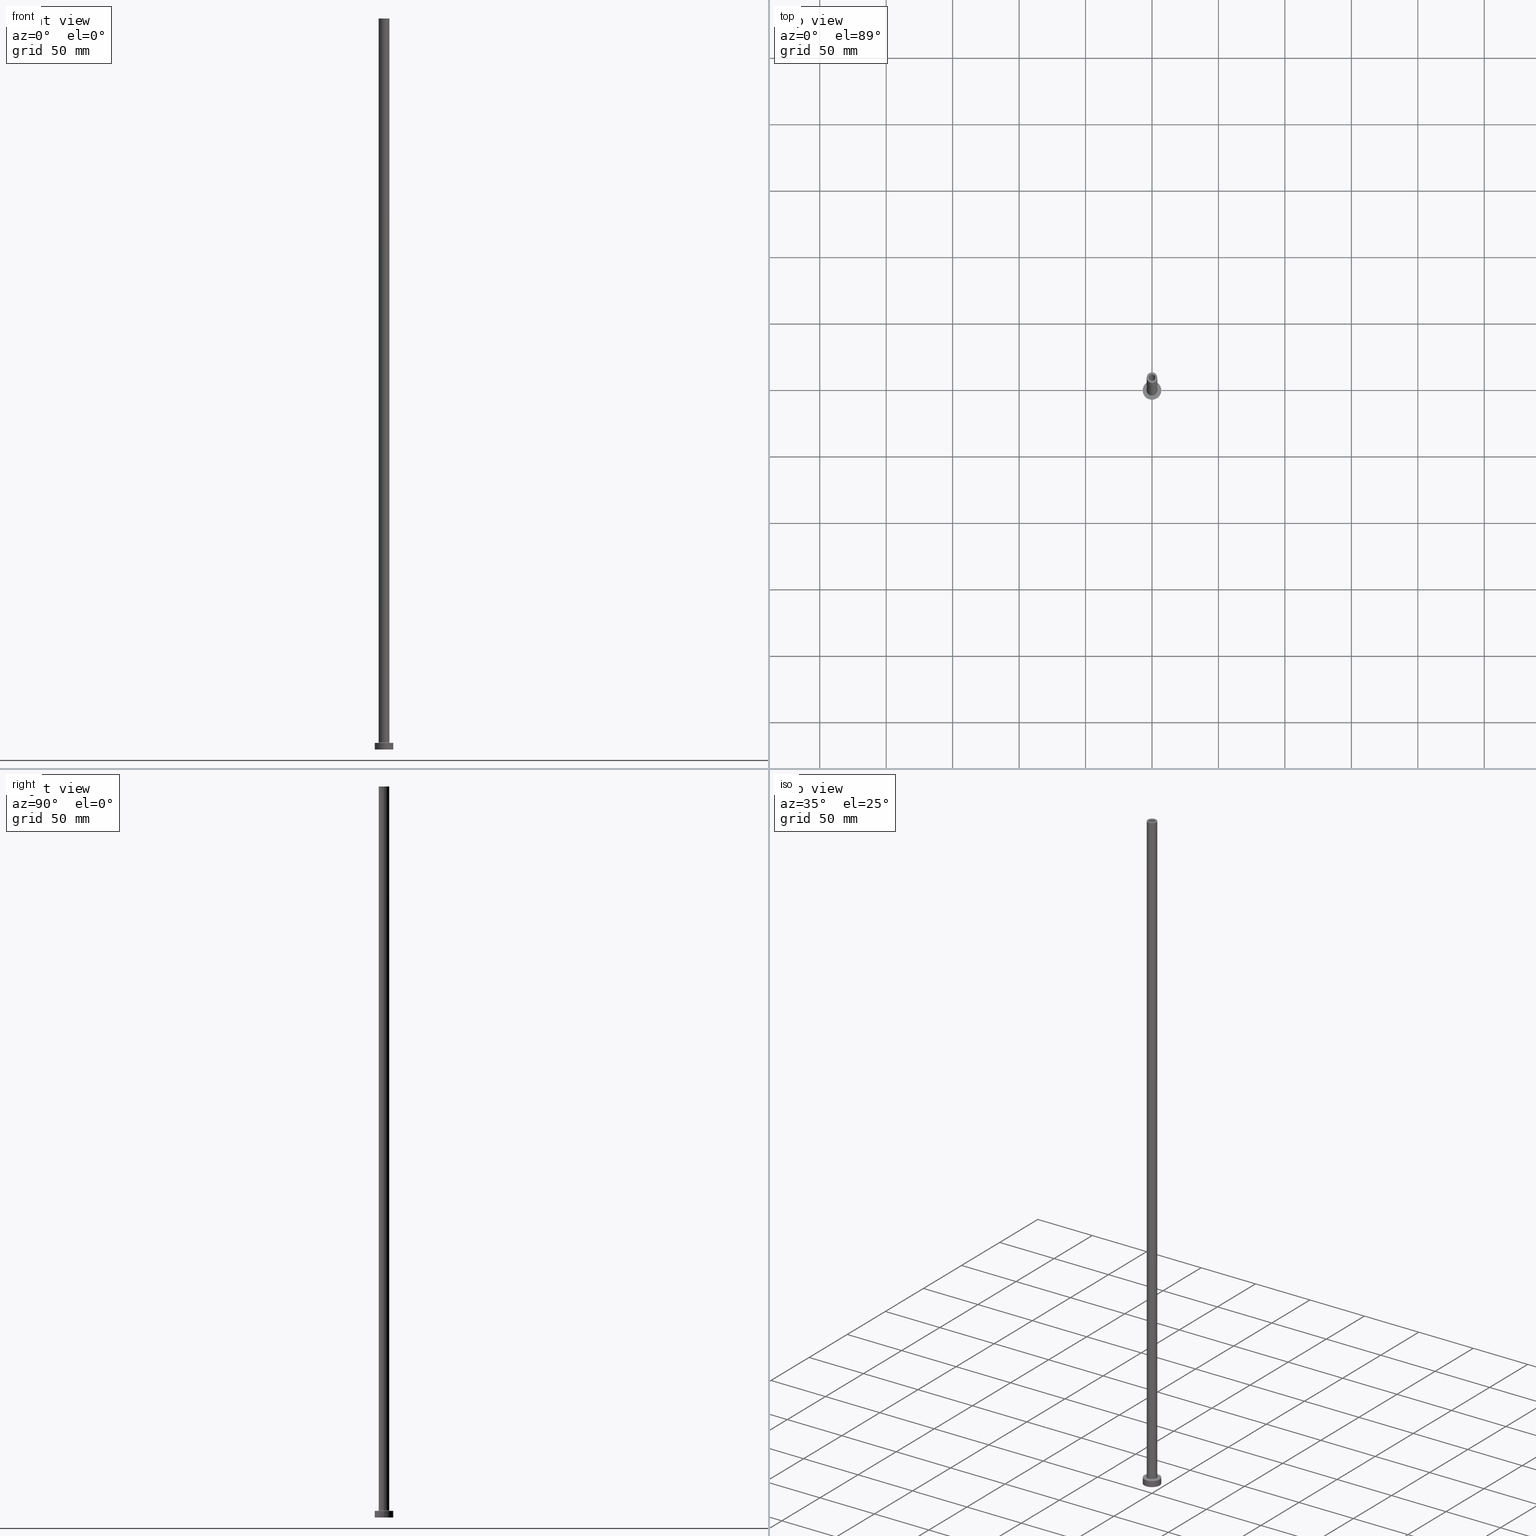
[diagram: canonical four-view strip — front | top / right | iso, engineering-drawing reading convention]
A machine part, canonical four-view strip (front | top / right | iso — engineering-drawing reading convention). The complete STEP part file that produces these views, byte-faithful:
ISO-10303-21;
HEADER;
FILE_DESCRIPTION (( 'STEP AP203' ),
    '1' );
FILE_NAME ('595f.STEP',
    '2023-02-13T17:08:48',
    ( '' ),
    ( '' ),
    'SwSTEP 2.0',
    'SolidWorks 2019',
    '' );
FILE_SCHEMA (( 'CONFIG_CONTROL_DESIGN' ));
ENDSEC;

DATA;
#1 = CARTESIAN_POINT ( 'NONE',  ( 2.500000000000000000, 3.061616997868383141E-16, 505.0000000000000000 ) ) ;
#2 = ORIENTED_EDGE ( 'NONE', *, *, #385, .F. ) ;
#3 = ADVANCED_FACE ( 'NONE', ( #139, #280 ), #12, .F. ) ;
#4 = APPROVAL_STATUS ( 'not_yet_approved' ) ;
#5 = DIRECTION ( 'NONE',  ( 0.000000000000000000, -1.000000000000000000, 0.000000000000000000 ) ) ;
#6 = COORDINATED_UNIVERSAL_TIME_OFFSET ( 1, 0, .AHEAD. ) ;
#7 = CARTESIAN_POINT ( 'NONE',  ( 0.000000000000000000, 0.000000000000000000, 505.0000000000000000 ) ) ;
#8 = MECHANICAL_CONTEXT ( 'NONE', #111, 'mechanical' ) ;
#9 = CARTESIAN_POINT ( 'NONE',  ( 0.000000000000000000, 0.000000000000000000, 0.000000000000000000 ) ) ;
#10 = CIRCLE ( 'NONE', #323, 2.500000000000000000 ) ;
#11 = COORDINATED_UNIVERSAL_TIME_OFFSET ( 1, 0, .AHEAD. ) ;
#12 = PLANE ( 'NONE',  #198 ) ;
#13 = PRODUCT ( '595f', '595f', '', ( #8 ) ) ;
#14 = DIRECTION ( 'NONE',  ( 0.000000000000000000, 0.000000000000000000, 1.000000000000000000 ) ) ;
#15 = ADVANCED_FACE ( 'NONE', ( #257 ), #190, .T. ) ;
#16 = ORGANIZATION ( 'NEUR�EN�', 'NEUR�EN�', '' ) ;
#17 = PERSON ( 'NEUR�EN�', 'NEUR�EN�', 'NEUR�EN�', ('NEUR�EN�'), ('NEUR�EN�'), ('NEUR�EN�') ) ;
#18 = CYLINDRICAL_SURFACE ( 'NONE', #371, 2.649999999999999911 ) ;
#19 = CARTESIAN_POINT ( 'NONE',  ( 0.000000000000000000, 0.000000000000000000, 5.000000000000000000 ) ) ;
#20 = VERTEX_POINT ( 'NONE', #366 ) ;
#21 = DIRECTION ( 'NONE',  ( 0.000000000000000000, 0.000000000000000000, -1.000000000000000000 ) ) ;
#22 = AXIS2_PLACEMENT_3D ( 'NONE', #281, #246, #57 ) ;
#23 = FACE_OUTER_BOUND ( 'NONE', #355, .T. ) ;
#24 = ORIENTED_EDGE ( 'NONE', *, *, #385, .T. ) ;
#25 = CARTESIAN_POINT ( 'NONE',  ( 2.649999999999999911, 3.245314017740485962E-16, 0.000000000000000000 ) ) ;
#26 = ORIENTED_EDGE ( 'NONE', *, *, #450, .T. ) ;
#27 = EDGE_CURVE ( 'NONE', #423, #244, #315, .T. ) ;
#28 = CARTESIAN_POINT ( 'NONE',  ( -2.500000000000000000, 0.000000000000000000, 505.0000000000000000 ) ) ;
#29 = ORIENTED_EDGE ( 'NONE', *, *, #253, .F. ) ;
#30 = DIRECTION ( 'NONE',  ( 0.000000000000000000, 0.000000000000000000, -1.000000000000000000 ) ) ;
#31 = CIRCLE ( 'NONE', #151, 2.649999999999999911 ) ;
#32 = ORIENTED_EDGE ( 'NONE', *, *, #87, .T. ) ;
#33 = CARTESIAN_POINT ( 'NONE',  ( 0.000000000000000000, 0.000000000000000000, 550.0000000000000000 ) ) ;
#34 = ORIENTED_EDGE ( 'NONE', *, *, #205, .F. ) ;
#35 = ORIENTED_EDGE ( 'NONE', *, *, #283, .T. ) ;
#36 = VERTEX_POINT ( 'NONE', #337 ) ;
#37 = ADVANCED_BREP_SHAPE_REPRESENTATION ( '595f', ( #100, #103 ), #43 ) ;
#38 = FACE_OUTER_BOUND ( 'NONE', #270, .T. ) ;
#39 = APPLICATION_PROTOCOL_DEFINITION ( 'international standard', 'config_control_design', 1994, #41 ) ;
#40 = CYLINDRICAL_SURFACE ( 'NONE', #339, 2.500000000000000000 ) ;
#41 = APPLICATION_CONTEXT ( 'configuration controlled 3d designs of mechanical parts and assemblies' ) ;
#42 = PERSON_AND_ORGANIZATION_ROLE ( 'classification_officer' ) ;
#43 =( GEOMETRIC_REPRESENTATION_CONTEXT ( 3 ) GLOBAL_UNCERTAINTY_ASSIGNED_CONTEXT ( ( #127 ) ) GLOBAL_UNIT_ASSIGNED_CONTEXT ( ( #321, #58, #141 ) ) REPRESENTATION_CONTEXT ( 'NONE', 'WORKASPACE' ) );
#44 = LINE ( 'NONE', #189, #181 ) ;
#45 = EDGE_CURVE ( 'NONE', #20, #425, #306, .T. ) ;
#46 = DATE_AND_TIME ( #217, #194 ) ;
#47 = CARTESIAN_POINT ( 'NONE',  ( 0.000000000000000000, 0.000000000000000000, 5.000000000000000000 ) ) ;
#48 = LINE ( 'NONE', #254, #294 ) ;
#49 = DIRECTION ( 'NONE',  ( 1.224646799147353207E-16, 1.000000000000000000, -0.000000000000000000 ) ) ;
#50 = VECTOR ( 'NONE', #372, 1000.000000000000000 ) ;
#51 = LINE ( 'NONE', #166, #50 ) ;
#52 = ORIENTED_EDGE ( 'NONE', *, *, #264, .F. ) ;
#53 = FACE_OUTER_BOUND ( 'NONE', #171, .T. ) ;
#54 = CARTESIAN_POINT ( 'NONE',  ( -2.500000000000000000, 0.000000000000000000, 550.0000000000000000 ) ) ;
#55 = ORIENTED_EDGE ( 'NONE', *, *, #368, .T. ) ;
#56 = AXIS2_PLACEMENT_3D ( 'NONE', #167, #138, #456 ) ;
#57 = DIRECTION ( 'NONE',  ( 1.000000000000000000, 0.000000000000000000, 0.000000000000000000 ) ) ;
#58 =( NAMED_UNIT ( * ) PLANE_ANGLE_UNIT ( ) SI_UNIT ( $, .RADIAN. ) );
#59 = EDGE_LOOP ( 'NONE', ( #241, #68 ) ) ;
#60 = CLOSED_SHELL ( 'NONE', ( #172, #345, #304, #214, #15, #305, #90, #3, #318, #418, #142, #291, #309, #147 ) ) ;
#61 = CARTESIAN_POINT ( 'NONE',  ( 0.000000000000000000, 0.000000000000000000, 5.000000000000000000 ) ) ;
#62 = VERTEX_POINT ( 'NONE', #297 ) ;
#63 = CC_DESIGN_APPROVAL ( #99, ( #434 ) ) ;
#64 = AXIS2_PLACEMENT_3D ( 'NONE', #61, #274, #210 ) ;
#65 = DIRECTION ( 'NONE',  ( 0.000000000000000000, 0.000000000000000000, 1.000000000000000000 ) ) ;
#66 = APPROVAL_PERSON_ORGANIZATION ( #334, #99, #336 ) ;
#67 = ORIENTED_EDGE ( 'NONE', *, *, #220, .T. ) ;
#68 = ORIENTED_EDGE ( 'NONE', *, *, #404, .F. ) ;
#69 = APPROVAL_DATE_TIME ( #292, #99 ) ;
#70 = ORIENTED_EDGE ( 'NONE', *, *, #290, .F. ) ;
#71 = CALENDAR_DATE ( 2023, 13, 2 ) ;
#72 = AXIS2_PLACEMENT_3D ( 'NONE', #303, #444, #229 ) ;
#73 = APPROVAL_PERSON_ORGANIZATION ( #324, #120, #250 ) ;
#74 = CARTESIAN_POINT ( 'NONE',  ( 0.000000000000000000, 0.000000000000000000, 5.499999999999949374 ) ) ;
#75 = DIRECTION ( 'NONE',  ( 1.000000000000000000, 0.000000000000000000, -0.000000000000000000 ) ) ;
#76 = CC_DESIGN_PERSON_AND_ORGANIZATION_ASSIGNMENT ( #396, #186, ( #209 ) ) ;
#77 = PERSON_AND_ORGANIZATION_ROLE ( 'creator' ) ;
#78 = DIRECTION ( 'NONE',  ( 1.000000000000000000, 0.000000000000000000, 0.000000000000000000 ) ) ;
#79 = PERSON_AND_ORGANIZATION_ROLE ( 'creator' ) ;
#80 = DIRECTION ( 'NONE',  ( 1.000000000000000000, 0.000000000000000000, 0.000000000000000000 ) ) ;
#81 = CIRCLE ( 'NONE', #447, 4.000000000000000000 ) ;
#82 = LINE ( 'NONE', #332, #433 ) ;
#83 = CARTESIAN_POINT ( 'NONE',  ( 7.000000000000000000, 8.572527594031473190E-16, 0.000000000000000000 ) ) ;
#84 = ORIENTED_EDGE ( 'NONE', *, *, #184, .F. ) ;
#85 = AXIS2_PLACEMENT_3D ( 'NONE', #88, #307, #313 ) ;
#86 = DIRECTION ( 'NONE',  ( 1.000000000000000000, 0.000000000000000000, 0.000000000000000000 ) ) ;
#87 = EDGE_CURVE ( 'NONE', #427, #62, #330, .T. ) ;
#88 = CARTESIAN_POINT ( 'NONE',  ( 0.000000000000000000, 0.000000000000000000, 5.000000000000000000 ) ) ;
#89 = VERTEX_POINT ( 'NONE', #155 ) ;
#90 = ADVANCED_FACE ( 'NONE', ( #117, #38 ), #185, .T. ) ;
#91 = CYLINDRICAL_SURFACE ( 'NONE', #245, 4.000000000000000000 ) ;
#92 = ORIENTED_EDGE ( 'NONE', *, *, #87, .F. ) ;
#93 = AXIS2_PLACEMENT_3D ( 'NONE', #408, #344, #86 ) ;
#94 = EDGE_CURVE ( 'NONE', #244, #423, #453, .T. ) ;
#95 = ORIENTED_EDGE ( 'NONE', *, *, #258, .T. ) ;
#96 = DESIGN_CONTEXT ( 'detailed design', #41, 'design' ) ;
#97 = DIRECTION ( 'NONE',  ( -0.000000000000000000, -0.000000000000000000, -1.000000000000000000 ) ) ;
#98 = ORIENTED_EDGE ( 'NONE', *, *, #204, .T. ) ;
#99 = APPROVAL ( #365, 'NEUR�EN�' ) ;
#100 = MANIFOLD_SOLID_BREP ( 'Odebrat vysunut�m4', #60 ) ;
#101 = PLANE ( 'NONE',  #333 ) ;
#102 = EDGE_LOOP ( 'NONE', ( #342, #26, #207, #420 ) ) ;
#103 = AXIS2_PLACEMENT_3D ( 'NONE', #331, #255, #182 ) ;
#104 = DIRECTION ( 'NONE',  ( -1.000000000000000000, 0.000000000000000000, 0.000000000000000000 ) ) ;
#105 = ORIENTED_EDGE ( 'NONE', *, *, #45, .T. ) ;
#106 = EDGE_CURVE ( 'NONE', #410, #417, #169, .T. ) ;
#107 = CC_DESIGN_PERSON_AND_ORGANIZATION_ASSIGNMENT ( #363, #79, ( #242 ) ) ;
#108 = ORIENTED_EDGE ( 'NONE', *, *, #253, .T. ) ;
#109 = AXIS2_PLACEMENT_3D ( 'NONE', #9, #14, #401 ) ;
#110 = DIRECTION ( 'NONE',  ( 1.000000000000000000, 0.000000000000000000, -0.000000000000000000 ) ) ;
#111 = APPLICATION_CONTEXT ( 'configuration controlled 3d designs of mechanical parts and assemblies' ) ;
#112 = AXIS2_PLACEMENT_3D ( 'NONE', #341, #228, #158 ) ;
#113 = CARTESIAN_POINT ( 'NONE',  ( -2.500000000000000000, 0.000000000000000000, 550.0000000000000000 ) ) ;
#114 = APPROVAL_DATE_TIME ( #156, #120 ) ;
#115 = DIRECTION ( 'NONE',  ( -1.000000000000000000, 0.000000000000000000, 0.000000000000000000 ) ) ;
#116 = SECURITY_CLASSIFICATION_LEVEL ( 'unclassified' ) ;
#117 = FACE_BOUND ( 'NONE', #350, .T. ) ;
#118 = COORDINATED_UNIVERSAL_TIME_OFFSET ( 1, 0, .AHEAD. ) ;
#119 = DIRECTION ( 'NONE',  ( 0.000000000000000000, 0.000000000000000000, -1.000000000000000000 ) ) ;
#120 = APPROVAL ( #4, 'NEUR�EN�' ) ;
#121 = DIRECTION ( 'NONE',  ( 0.000000000000000000, 0.000000000000000000, -1.000000000000000000 ) ) ;
#122 = ORIENTED_EDGE ( 'NONE', *, *, #460, .F. ) ;
#123 = CARTESIAN_POINT ( 'NONE',  ( 0.000000000000000000, 0.000000000000000000, 505.0000000000000000 ) ) ;
#124 = DIRECTION ( 'NONE',  ( 0.000000000000000000, 0.000000000000000000, 1.000000000000000000 ) ) ;
#125 = EDGE_LOOP ( 'NONE', ( #232, #122 ) ) ;
#126 = VECTOR ( 'NONE', #30, 1000.000000000000000 ) ;
#127 = UNCERTAINTY_MEASURE_WITH_UNIT (LENGTH_MEASURE( 1.000000000000000082E-05 ), #321, 'distance_accuracy_value', 'NONE');
#128 = CARTESIAN_POINT ( 'NONE',  ( -4.500000000000000888, 5.510910596163089556E-16, 5.499999999999949374 ) ) ;
#129 = ORIENTED_EDGE ( 'NONE', *, *, #283, .F. ) ;
#130 = CYLINDRICAL_SURFACE ( 'NONE', #300, 7.000000000000000000 ) ;
#131 = VERTEX_POINT ( 'NONE', #326 ) ;
#132 = AXIS2_PLACEMENT_3D ( 'NONE', #221, #367, #80 ) ;
#133 = FACE_OUTER_BOUND ( 'NONE', #380, .T. ) ;
#134 = ORIENTED_EDGE ( 'NONE', *, *, #94, .T. ) ;
#135 = CC_DESIGN_SECURITY_CLASSIFICATION ( #434, ( #209 ) ) ;
#136 = DIRECTION ( 'NONE',  ( 0.000000000000000000, 0.000000000000000000, 1.000000000000000000 ) ) ;
#137 = EDGE_LOOP ( 'NONE', ( #392, #55 ) ) ;
#138 = DIRECTION ( 'NONE',  ( 0.000000000000000000, 0.000000000000000000, -1.000000000000000000 ) ) ;
#139 = FACE_BOUND ( 'NONE', #125, .T. ) ;
#140 = AXIS2_PLACEMENT_3D ( 'NONE', #47, #296, #187 ) ;
#141 =( NAMED_UNIT ( * ) SI_UNIT ( $, .STERADIAN. ) SOLID_ANGLE_UNIT ( ) );
#142 = ADVANCED_FACE ( 'NONE', ( #225 ), #430, .F. ) ;
#143 = ORIENTED_EDGE ( 'NONE', *, *, #264, .T. ) ;
#144 = CIRCLE ( 'NONE', #85, 4.500000000000000888 ) ;
#145 = APPLICATION_PROTOCOL_DEFINITION ( 'international standard', 'config_control_design', 1994, #111 ) ;
#146 = ORIENTED_EDGE ( 'NONE', *, *, #178, .F. ) ;
#147 = ADVANCED_FACE ( 'NONE', ( #223 ), #441, .F. ) ;
#148 = COORDINATED_UNIVERSAL_TIME_OFFSET ( 1, 0, .AHEAD. ) ;
#149 = DIRECTION ( 'NONE',  ( -0.000000000000000000, -0.000000000000000000, -1.000000000000000000 ) ) ;
#150 = AXIS2_PLACEMENT_3D ( 'NONE', #256, #5, #119 ) ;
#151 = AXIS2_PLACEMENT_3D ( 'NONE', #316, #176, #277 ) ;
#152 = VECTOR ( 'NONE', #121, 1000.000000000000000 ) ;
#153 = DIRECTION ( 'NONE',  ( 0.000000000000000000, 0.000000000000000000, -1.000000000000000000 ) ) ;
#154 = CALENDAR_DATE ( 2023, 13, 2 ) ;
#155 = CARTESIAN_POINT ( 'NONE',  ( -4.500000000000000888, 5.510910596163088569E-16, 4.999999999999975131 ) ) ;
#156 = DATE_AND_TIME ( #357, #267 ) ;
#157 = DIRECTION ( 'NONE',  ( 0.000000000000000000, 0.000000000000000000, 1.000000000000000000 ) ) ;
#158 = DIRECTION ( 'NONE',  ( 1.000000000000000000, 0.000000000000000000, 0.000000000000000000 ) ) ;
#159 = CIRCLE ( 'NONE', #64, 7.000000000000000000 ) ;
#160 = AXIS2_PLACEMENT_3D ( 'NONE', #201, #179, #348 ) ;
#161 = DIRECTION ( 'NONE',  ( -1.000000000000000000, 0.000000000000000000, 0.000000000000000000 ) ) ;
#162 = CARTESIAN_POINT ( 'NONE',  ( 2.500000000000000000, 3.061616997868383141E-16, 550.0000000000000000 ) ) ;
#163 = DIRECTION ( 'NONE',  ( 1.000000000000000000, 0.000000000000000000, 0.000000000000000000 ) ) ;
#164 = CIRCLE ( 'NONE', #160, 4.000000000000000000 ) ;
#165 = LOCAL_TIME ( 18, 8, 48.00000000000000000, #11 ) ;
#166 = CARTESIAN_POINT ( 'NONE',  ( -4.000000000000000000, 0.000000000000000000, 550.0000000000000000 ) ) ;
#167 = CARTESIAN_POINT ( 'NONE',  ( 0.000000000000000000, 0.000000000000000000, 512.4953318805775098 ) ) ;
#168 = ORIENTED_EDGE ( 'NONE', *, *, #273, .F. ) ;
#169 = CIRCLE ( 'NONE', #383, 2.500000000000000000 ) ;
#170 = CARTESIAN_POINT ( 'NONE',  ( 0.000000000000000000, 0.000000000000000000, 550.0000000000000000 ) ) ;
#171 = EDGE_LOOP ( 'NONE', ( #322, #412, #455, #308 ) ) ;
#172 = ADVANCED_FACE ( 'NONE', ( #436 ), #40, .F. ) ;
#173 = CYLINDRICAL_SURFACE ( 'NONE', #56, 2.649999999999999911 ) ;
#174 = CC_DESIGN_PERSON_AND_ORGANIZATION_ASSIGNMENT ( #440, #42, ( #434 ) ) ;
#175 = ORIENTED_EDGE ( 'NONE', *, *, #368, .F. ) ;
#176 = DIRECTION ( 'NONE',  ( -0.000000000000000000, -0.000000000000000000, -1.000000000000000000 ) ) ;
#177 = ORIENTED_EDGE ( 'NONE', *, *, #404, .T. ) ;
#178 = EDGE_CURVE ( 'NONE', #131, #423, #82, .T. ) ;
#179 = DIRECTION ( 'NONE',  ( 0.000000000000000000, 0.000000000000000000, 1.000000000000000000 ) ) ;
#180 = VERTEX_POINT ( 'NONE', #113 ) ;
#181 = VECTOR ( 'NONE', #335, 1000.000000000000000 ) ;
#182 = DIRECTION ( 'NONE',  ( 1.000000000000000000, 0.000000000000000000, 0.000000000000000000 ) ) ;
#183 = ORIENTED_EDGE ( 'NONE', *, *, #376, .T. ) ;
#184 = EDGE_CURVE ( 'NONE', #213, #244, #48, .T. ) ;
#185 = PLANE ( 'NONE',  #422 ) ;
#186 = PERSON_AND_ORGANIZATION_ROLE ( 'design_supplier' ) ;
#187 = DIRECTION ( 'NONE',  ( -1.000000000000000000, 0.000000000000000000, 0.000000000000000000 ) ) ;
#188 = DATE_AND_TIME ( #71, #312 ) ;
#189 = CARTESIAN_POINT ( 'NONE',  ( 4.000000000000000000, 4.898587196589412829E-16, 550.0000000000000000 ) ) ;
#190 = CYLINDRICAL_SURFACE ( 'NONE', #140, 7.000000000000000000 ) ;
#191 = CARTESIAN_POINT ( 'NONE',  ( 0.000000000000000000, 0.000000000000000000, 5.000000000000000000 ) ) ;
#192 = DIRECTION ( 'NONE',  ( -1.000000000000000000, 1.224646799147351482E-16, 0.000000000000000000 ) ) ;
#193 = CIRCLE ( 'NONE', #387, 7.000000000000000000 ) ;
#194 = LOCAL_TIME ( 18, 8, 48.00000000000000000, #437 ) ;
#195 = CARTESIAN_POINT ( 'NONE',  ( 0.000000000000000000, 0.000000000000000000, 5.000000000000000000 ) ) ;
#196 = VERTEX_POINT ( 'NONE', #397 ) ;
#197 = LINE ( 'NONE', #54, #284 ) ;
#198 = AXIS2_PLACEMENT_3D ( 'NONE', #438, #329, #75 ) ;
#199 = FACE_OUTER_BOUND ( 'NONE', #457, .T. ) ;
#200 = CIRCLE ( 'NONE', #416, 2.500000000000000000 ) ;
#201 = CARTESIAN_POINT ( 'NONE',  ( 0.000000000000000000, 0.000000000000000000, 5.499999999999949374 ) ) ;
#202 = ORIENTED_EDGE ( 'NONE', *, *, #325, .F. ) ;
#203 = ORIENTED_EDGE ( 'NONE', *, *, #212, .T. ) ;
#204 = EDGE_CURVE ( 'NONE', #36, #320, #222, .T. ) ;
#205 = EDGE_CURVE ( 'NONE', #62, #20, #44, .T. ) ;
#206 = FACE_OUTER_BOUND ( 'NONE', #276, .T. ) ;
#207 = ORIENTED_EDGE ( 'NONE', *, *, #106, .F. ) ;
#208 = AXIS2_PLACEMENT_3D ( 'NONE', #446, #124, #452 ) ;
#209 = PRODUCT_DEFINITION_FORMATION_WITH_SPECIFIED_SOURCE ( 'LIBOVOLN�', '', #13, .NOT_KNOWN. ) ;
#210 = DIRECTION ( 'NONE',  ( 1.000000000000000000, 0.000000000000000000, 0.000000000000000000 ) ) ;
#211 = ORIENTED_EDGE ( 'NONE', *, *, #460, .T. ) ;
#212 = EDGE_CURVE ( 'NONE', #62, #427, #81, .T. ) ;
#213 = VERTEX_POINT ( 'NONE', #413 ) ;
#214 = ADVANCED_FACE ( 'NONE', ( #53 ), #91, .T. ) ;
#215 = ORIENTED_EDGE ( 'NONE', *, *, #409, .F. ) ;
#216 = VECTOR ( 'NONE', #364, 1000.000000000000000 ) ;
#217 = CALENDAR_DATE ( 2023, 13, 2 ) ;
#218 = DIRECTION ( 'NONE',  ( -0.000000000000000000, -0.000000000000000000, -1.000000000000000000 ) ) ;
#219 = CALENDAR_DATE ( 2023, 13, 2 ) ;
#220 = EDGE_CURVE ( 'NONE', #282, #320, #395, .T. ) ;
#221 = CARTESIAN_POINT ( 'NONE',  ( 0.000000000000000000, 0.000000000000000000, 0.000000000000000000 ) ) ;
#222 = LINE ( 'NONE', #399, #216 ) ;
#223 = FACE_OUTER_BOUND ( 'NONE', #451, .T. ) ;
#224 = EDGE_CURVE ( 'NONE', #427, #196, #51, .T. ) ;
#225 = FACE_OUTER_BOUND ( 'NONE', #235, .T. ) ;
#226 = CARTESIAN_POINT ( 'NONE',  ( -2.649999999999999911, 0.000000000000000000, 512.4953318805775098 ) ) ;
#227 = ORIENTED_EDGE ( 'NONE', *, *, #45, .F. ) ;
#228 = DIRECTION ( 'NONE',  ( 0.000000000000000000, 0.000000000000000000, 1.000000000000000000 ) ) ;
#229 = DIRECTION ( 'NONE',  ( 1.000000000000000000, 0.000000000000000000, 0.000000000000000000 ) ) ;
#230 = ORIENTED_EDGE ( 'NONE', *, *, #273, .T. ) ;
#231 = FACE_OUTER_BOUND ( 'NONE', #384, .T. ) ;
#232 = ORIENTED_EDGE ( 'NONE', *, *, #220, .F. ) ;
#233 = CC_DESIGN_PERSON_AND_ORGANIZATION_ASSIGNMENT ( #398, #77, ( #209 ) ) ;
#234 = DIRECTION ( 'NONE',  ( 0.000000000000000000, 0.000000000000000000, -1.000000000000000000 ) ) ;
#235 = EDGE_LOOP ( 'NONE', ( #168, #202, #105, #70 ) ) ;
#236 = CIRCLE ( 'NONE', #112, 2.649999999999999911 ) ;
#237 = EDGE_CURVE ( 'NONE', #180, #287, #275, .T. ) ;
#238 = DIRECTION ( 'NONE',  ( 1.000000000000000000, 0.000000000000000000, 0.000000000000000000 ) ) ;
#239 = ORIENTED_EDGE ( 'NONE', *, *, #290, .T. ) ;
#240 = CARTESIAN_POINT ( 'NONE',  ( 0.000000000000000000, 0.000000000000000000, 550.0000000000000000 ) ) ;
#241 = ORIENTED_EDGE ( 'NONE', *, *, #237, .F. ) ;
#242 = PRODUCT_DEFINITION ( 'NEZN�M�', '', #209, #96 ) ;
#243 = DIRECTION ( 'NONE',  ( 0.000000000000000000, 0.000000000000000000, 1.000000000000000000 ) ) ;
#244 = VERTEX_POINT ( 'NONE', #83 ) ;
#245 = AXIS2_PLACEMENT_3D ( 'NONE', #340, #369, #377 ) ;
#246 = DIRECTION ( 'NONE',  ( 0.000000000000000000, 0.000000000000000000, 1.000000000000000000 ) ) ;
#247 = ORIENTED_EDGE ( 'NONE', *, *, #184, .T. ) ;
#248 = DIRECTION ( 'NONE',  ( 1.000000000000000000, 0.000000000000000000, 0.000000000000000000 ) ) ;
#249 = ORIENTED_EDGE ( 'NONE', *, *, #224, .T. ) ;
#250 = APPROVAL_ROLE ( '' ) ;
#251 = DIRECTION ( 'NONE',  ( 0.000000000000000000, 0.000000000000000000, 1.000000000000000000 ) ) ;
#252 = DATE_TIME_ROLE ( 'creation_date' ) ;
#253 = EDGE_CURVE ( 'NONE', #370, #282, #374, .T. ) ;
#254 = CARTESIAN_POINT ( 'NONE',  ( 7.000000000000000000, 8.572527594031473190E-16, 5.000000000000000000 ) ) ;
#255 = DIRECTION ( 'NONE',  ( 0.000000000000000000, 0.000000000000000000, 1.000000000000000000 ) ) ;
#256 = CARTESIAN_POINT ( 'NONE',  ( 4.500000000000000888, 0.000000000000000000, 5.499999999999949374 ) ) ;
#257 = FACE_OUTER_BOUND ( 'NONE', #381, .T. ) ;
#258 = EDGE_CURVE ( 'NONE', #180, #410, #197, .T. ) ;
#259 = TOROIDAL_SURFACE ( 'NONE', #208, 4.500000000000000888, 0.5000000000000000000 ) ;
#260 = CARTESIAN_POINT ( 'NONE',  ( 0.000000000000000000, 0.000000000000000000, 550.0000000000000000 ) ) ;
#261 = EDGE_CURVE ( 'NONE', #213, #131, #193, .T. ) ;
#262 = DIRECTION ( 'NONE',  ( 1.000000000000000000, 0.000000000000000000, -0.000000000000000000 ) ) ;
#263 = DIRECTION ( 'NONE',  ( 0.000000000000000000, 0.000000000000000000, 1.000000000000000000 ) ) ;
#264 = EDGE_CURVE ( 'NONE', #425, #89, #352, .T. ) ;
#265 = CARTESIAN_POINT ( 'NONE',  ( 0.000000000000000000, 0.000000000000000000, 550.0000000000000000 ) ) ;
#266 = AXIS2_PLACEMENT_3D ( 'NONE', #279, #65, #248 ) ;
#267 = LOCAL_TIME ( 18, 8, 48.00000000000000000, #6 ) ;
#268 = ORIENTED_EDGE ( 'NONE', *, *, #27, .F. ) ;
#269 = CARTESIAN_POINT ( 'NONE',  ( -2.649999999999999911, 0.000000000000000000, 0.000000000000000000 ) ) ;
#270 = EDGE_LOOP ( 'NONE', ( #461, #390 ) ) ;
#271 = CC_DESIGN_PERSON_AND_ORGANIZATION_ASSIGNMENT ( #295, #428, ( #13 ) ) ;
#272 = DIRECTION ( 'NONE',  ( -0.000000000000000000, -0.000000000000000000, -1.000000000000000000 ) ) ;
#273 = EDGE_CURVE ( 'NONE', #196, #89, #414, .T. ) ;
#274 = DIRECTION ( 'NONE',  ( 0.000000000000000000, 0.000000000000000000, 1.000000000000000000 ) ) ;
#275 = CIRCLE ( 'NONE', #72, 2.500000000000000000 ) ;
#276 = EDGE_LOOP ( 'NONE', ( #32, #203 ) ) ;
#277 = DIRECTION ( 'NONE',  ( 1.000000000000000000, 0.000000000000000000, 0.000000000000000000 ) ) ;
#278 = ORIENTED_EDGE ( 'NONE', *, *, #261, .F. ) ;
#279 = CARTESIAN_POINT ( 'NONE',  ( 0.000000000000000000, 0.000000000000000000, 505.0000000000000000 ) ) ;
#280 = FACE_OUTER_BOUND ( 'NONE', #388, .T. ) ;
#281 = CARTESIAN_POINT ( 'NONE',  ( 0.000000000000000000, 0.000000000000000000, 5.499999999999949374 ) ) ;
#282 = VERTEX_POINT ( 'NONE', #269 ) ;
#283 = EDGE_CURVE ( 'NONE', #36, #370, #236, .T. ) ;
#284 = VECTOR ( 'NONE', #21, 1000.000000000000000 ) ;
#285 = CC_DESIGN_APPROVAL ( #443, ( #242 ) ) ;
#286 = CARTESIAN_POINT ( 'NONE',  ( 2.500000000000000000, 3.061616997868383141E-16, 550.0000000000000000 ) ) ;
#287 = VERTEX_POINT ( 'NONE', #162 ) ;
#288 = APPROVAL_DATE_TIME ( #298, #443 ) ;
#289 = CARTESIAN_POINT ( 'NONE',  ( 0.000000000000000000, 0.000000000000000000, 5.000000000000000000 ) ) ;
#290 = EDGE_CURVE ( 'NONE', #89, #425, #144, .T. ) ;
#291 = ADVANCED_FACE ( 'NONE', ( #231 ), #18, .F. ) ;
#292 = DATE_AND_TIME ( #154, #165 ) ;
#293 = DIRECTION ( 'NONE',  ( 0.000000000000000000, 0.000000000000000000, 1.000000000000000000 ) ) ;
#294 = VECTOR ( 'NONE', #218, 1000.000000000000000 ) ;
#295 = PERSON_AND_ORGANIZATION ( #17, #16 ) ;
#296 = DIRECTION ( 'NONE',  ( -0.000000000000000000, -0.000000000000000000, -1.000000000000000000 ) ) ;
#297 = CARTESIAN_POINT ( 'NONE',  ( 4.000000000000000000, 4.898587196589412829E-16, 550.0000000000000000 ) ) ;
#298 = DATE_AND_TIME ( #219, #448 ) ;
#299 = DIRECTION ( 'NONE',  ( 1.000000000000000000, 0.000000000000000000, 0.000000000000000000 ) ) ;
#300 = AXIS2_PLACEMENT_3D ( 'NONE', #191, #272, #161 ) ;
#301 = FACE_BOUND ( 'NONE', #137, .T. ) ;
#302 = PRODUCT_RELATED_PRODUCT_CATEGORY ( 'detail', '', ( #13 ) ) ;
#303 = CARTESIAN_POINT ( 'NONE',  ( 0.000000000000000000, 0.000000000000000000, 550.0000000000000000 ) ) ;
#304 = ADVANCED_FACE ( 'NONE', ( #199 ), #259, .F. ) ;
#305 = ADVANCED_FACE ( 'NONE', ( #23 ), #130, .T. ) ;
#306 = CIRCLE ( 'NONE', #150, 0.5000000000000004441 ) ;
#307 = DIRECTION ( 'NONE',  ( -0.000000000000000000, -0.000000000000000000, -1.000000000000000000 ) ) ;
#308 = ORIENTED_EDGE ( 'NONE', *, *, #224, .F. ) ;
#309 = ADVANCED_FACE ( 'NONE', ( #301, #338 ), #442, .F. ) ;
#310 = DIRECTION ( 'NONE',  ( -0.000000000000000000, -0.000000000000000000, -1.000000000000000000 ) ) ;
#311 = CIRCLE ( 'NONE', #22, 4.000000000000000000 ) ;
#312 = LOCAL_TIME ( 18, 8, 48.00000000000000000, #118 ) ;
#313 = DIRECTION ( 'NONE',  ( 1.000000000000000000, 0.000000000000000000, 0.000000000000000000 ) ) ;
#314 = DIRECTION ( 'NONE',  ( 1.000000000000000000, 0.000000000000000000, 0.000000000000000000 ) ) ;
#315 = CIRCLE ( 'NONE', #132, 7.000000000000000000 ) ;
#316 = CARTESIAN_POINT ( 'NONE',  ( 0.000000000000000000, 0.000000000000000000, 0.000000000000000000 ) ) ;
#317 = ORIENTED_EDGE ( 'NONE', *, *, #450, .F. ) ;
#318 = ADVANCED_FACE ( 'NONE', ( #419 ), #354, .T. ) ;
#319 = ORIENTED_EDGE ( 'NONE', *, *, #376, .F. ) ;
#320 = VERTEX_POINT ( 'NONE', #25 ) ;
#321 =( LENGTH_UNIT ( ) NAMED_UNIT ( * ) SI_UNIT ( .MILLI., .METRE. ) );
#322 = ORIENTED_EDGE ( 'NONE', *, *, #212, .F. ) ;
#323 = AXIS2_PLACEMENT_3D ( 'NONE', #382, #454, #238 ) ;
#324 = PERSON_AND_ORGANIZATION ( #17, #16 ) ;
#325 = EDGE_CURVE ( 'NONE', #20, #196, #311, .T. ) ;
#326 = CARTESIAN_POINT ( 'NONE',  ( -7.000000000000000000, 0.000000000000000000, 5.000000000000000000 ) ) ;
#327 = PRODUCT_DEFINITION_SHAPE ( 'NONE', 'NONE',  #242 ) ;
#328 = APPROVAL_ROLE ( '' ) ;
#329 = DIRECTION ( 'NONE',  ( 0.000000000000000000, 0.000000000000000000, 1.000000000000000000 ) ) ;
#330 = CIRCLE ( 'NONE', #343, 4.000000000000000000 ) ;
#331 = CARTESIAN_POINT ( 'NONE',  ( 0.000000000000000000, 0.000000000000000000, 0.000000000000000000 ) ) ;
#332 = CARTESIAN_POINT ( 'NONE',  ( -7.000000000000000000, 0.000000000000000000, 5.000000000000000000 ) ) ;
#333 = AXIS2_PLACEMENT_3D ( 'NONE', #33, #243, #458 ) ;
#334 = PERSON_AND_ORGANIZATION ( #17, #16 ) ;
#335 = DIRECTION ( 'NONE',  ( -0.000000000000000000, -0.000000000000000000, -1.000000000000000000 ) ) ;
#336 = APPROVAL_ROLE ( '' ) ;
#337 = CARTESIAN_POINT ( 'NONE',  ( 2.649999999999999911, 3.245314017740485962E-16, 505.0000000000000000 ) ) ;
#338 = FACE_OUTER_BOUND ( 'NONE', #356, .T. ) ;
#339 = AXIS2_PLACEMENT_3D ( 'NONE', #429, #394, #115 ) ;
#340 = CARTESIAN_POINT ( 'NONE',  ( 0.000000000000000000, 0.000000000000000000, 550.0000000000000000 ) ) ;
#341 = CARTESIAN_POINT ( 'NONE',  ( 0.000000000000000000, 0.000000000000000000, 505.0000000000000000 ) ) ;
#342 = ORIENTED_EDGE ( 'NONE', *, *, #237, .T. ) ;
#343 = AXIS2_PLACEMENT_3D ( 'NONE', #361, #432, #78 ) ;
#344 = DIRECTION ( 'NONE',  ( -0.000000000000000000, -0.000000000000000000, -1.000000000000000000 ) ) ;
#345 = ADVANCED_FACE ( 'NONE', ( #133 ), #173, .F. ) ;
#346 = DIRECTION ( 'NONE',  ( 0.000000000000000000, 0.000000000000000000, 1.000000000000000000 ) ) ;
#347 = AXIS2_PLACEMENT_3D ( 'NONE', #128, #49, #192 ) ;
#348 = DIRECTION ( 'NONE',  ( 1.000000000000000000, 0.000000000000000000, 0.000000000000000000 ) ) ;
#349 = CARTESIAN_POINT ( 'NONE',  ( -2.649999999999999911, 0.000000000000000000, 505.0000000000000000 ) ) ;
#350 = EDGE_LOOP ( 'NONE', ( #143, #239 ) ) ;
#351 = LINE ( 'NONE', #286, #126 ) ;
#352 = CIRCLE ( 'NONE', #407, 4.500000000000000888 ) ;
#353 = EDGE_LOOP ( 'NONE', ( #34, #92, #249, #24 ) ) ;
#354 = CYLINDRICAL_SURFACE ( 'NONE', #379, 4.000000000000000000 ) ;
#355 = EDGE_LOOP ( 'NONE', ( #84, #215, #358, #375 ) ) ;
#356 = EDGE_LOOP ( 'NONE', ( #319, #129 ) ) ;
#357 = CALENDAR_DATE ( 2023, 13, 2 ) ;
#358 = ORIENTED_EDGE ( 'NONE', *, *, #178, .T. ) ;
#359 = CIRCLE ( 'NONE', #266, 2.649999999999999911 ) ;
#360 = SHAPE_DEFINITION_REPRESENTATION ( #327, #37 ) ;
#361 = CARTESIAN_POINT ( 'NONE',  ( 0.000000000000000000, 0.000000000000000000, 550.0000000000000000 ) ) ;
#362 = DIRECTION ( 'NONE',  ( 1.000000000000000000, 0.000000000000000000, 0.000000000000000000 ) ) ;
#363 = PERSON_AND_ORGANIZATION ( #17, #16 ) ;
#364 = DIRECTION ( 'NONE',  ( 0.000000000000000000, 0.000000000000000000, -1.000000000000000000 ) ) ;
#365 = APPROVAL_STATUS ( 'not_yet_approved' ) ;
#366 = CARTESIAN_POINT ( 'NONE',  ( 4.000000000000000000, 4.898587196589412829E-16, 5.499999999999949374 ) ) ;
#367 = DIRECTION ( 'NONE',  ( 0.000000000000000000, 0.000000000000000000, 1.000000000000000000 ) ) ;
#368 = EDGE_CURVE ( 'NONE', #417, #410, #10, .T. ) ;
#369 = DIRECTION ( 'NONE',  ( -0.000000000000000000, -0.000000000000000000, -1.000000000000000000 ) ) ;
#370 = VERTEX_POINT ( 'NONE', #349 ) ;
#371 = AXIS2_PLACEMENT_3D ( 'NONE', #406, #234, #378 ) ;
#372 = DIRECTION ( 'NONE',  ( -0.000000000000000000, -0.000000000000000000, -1.000000000000000000 ) ) ;
#373 = ORIENTED_EDGE ( 'NONE', *, *, #94, .F. ) ;
#374 = LINE ( 'NONE', #226, #152 ) ;
#375 = ORIENTED_EDGE ( 'NONE', *, *, #27, .T. ) ;
#376 = EDGE_CURVE ( 'NONE', #370, #36, #359, .T. ) ;
#377 = DIRECTION ( 'NONE',  ( -1.000000000000000000, 0.000000000000000000, 0.000000000000000000 ) ) ;
#378 = DIRECTION ( 'NONE',  ( -1.000000000000000000, 0.000000000000000000, 0.000000000000000000 ) ) ;
#379 = AXIS2_PLACEMENT_3D ( 'NONE', #240, #97, #104 ) ;
#380 = EDGE_LOOP ( 'NONE', ( #183, #98, #211, #29 ) ) ;
#381 = EDGE_LOOP ( 'NONE', ( #278, #247, #134, #146 ) ) ;
#382 = CARTESIAN_POINT ( 'NONE',  ( 0.000000000000000000, 0.000000000000000000, 505.0000000000000000 ) ) ;
#383 = AXIS2_PLACEMENT_3D ( 'NONE', #7, #157, #299 ) ;
#384 = EDGE_LOOP ( 'NONE', ( #459, #35, #108, #67 ) ) ;
#385 = EDGE_CURVE ( 'NONE', #196, #20, #164, .T. ) ;
#386 = CARTESIAN_POINT ( 'NONE',  ( 4.500000000000000888, 0.000000000000000000, 4.999999999999975131 ) ) ;
#387 = AXIS2_PLACEMENT_3D ( 'NONE', #19, #405, #449 ) ;
#388 = EDGE_LOOP ( 'NONE', ( #268, #373 ) ) ;
#389 = CARTESIAN_POINT ( 'NONE',  ( -4.000000000000000000, 0.000000000000000000, 550.0000000000000000 ) ) ;
#390 = ORIENTED_EDGE ( 'NONE', *, *, #261, .T. ) ;
#391 = PERSON_AND_ORGANIZATION ( #17, #16 ) ;
#392 = ORIENTED_EDGE ( 'NONE', *, *, #106, .T. ) ;
#393 = DATE_TIME_ROLE ( 'classification_date' ) ;
#394 = DIRECTION ( 'NONE',  ( 0.000000000000000000, 0.000000000000000000, -1.000000000000000000 ) ) ;
#395 = CIRCLE ( 'NONE', #93, 2.649999999999999911 ) ;
#396 = PERSON_AND_ORGANIZATION ( #17, #16 ) ;
#397 = CARTESIAN_POINT ( 'NONE',  ( -4.000000000000000000, 0.000000000000000000, 5.499999999999949374 ) ) ;
#398 = PERSON_AND_ORGANIZATION ( #17, #16 ) ;
#399 = CARTESIAN_POINT ( 'NONE',  ( 2.649999999999999911, 3.245314017740485962E-16, 512.4953318805775098 ) ) ;
#400 = AXIS2_PLACEMENT_3D ( 'NONE', #260, #153, #403 ) ;
#401 = DIRECTION ( 'NONE',  ( 1.000000000000000000, 0.000000000000000000, 0.000000000000000000 ) ) ;
#402 = AXIS2_PLACEMENT_3D ( 'NONE', #123, #263, #262 ) ;
#403 = DIRECTION ( 'NONE',  ( -1.000000000000000000, 0.000000000000000000, 0.000000000000000000 ) ) ;
#404 = EDGE_CURVE ( 'NONE', #287, #180, #200, .T. ) ;
#405 = DIRECTION ( 'NONE',  ( 0.000000000000000000, 0.000000000000000000, 1.000000000000000000 ) ) ;
#406 = CARTESIAN_POINT ( 'NONE',  ( 0.000000000000000000, 0.000000000000000000, 512.4953318805775098 ) ) ;
#407 = AXIS2_PLACEMENT_3D ( 'NONE', #195, #310, #411 ) ;
#408 = CARTESIAN_POINT ( 'NONE',  ( 0.000000000000000000, 0.000000000000000000, 0.000000000000000000 ) ) ;
#409 = EDGE_CURVE ( 'NONE', #131, #213, #159, .T. ) ;
#410 = VERTEX_POINT ( 'NONE', #28 ) ;
#411 = DIRECTION ( 'NONE',  ( 1.000000000000000000, 0.000000000000000000, 0.000000000000000000 ) ) ;
#412 = ORIENTED_EDGE ( 'NONE', *, *, #205, .T. ) ;
#413 = CARTESIAN_POINT ( 'NONE',  ( 7.000000000000000000, 8.572527594031473190E-16, 5.000000000000000000 ) ) ;
#414 = CIRCLE ( 'NONE', #347, 0.5000000000000004441 ) ;
#415 = CARTESIAN_POINT ( 'NONE',  ( -7.000000000000000000, 0.000000000000000000, 0.000000000000000000 ) ) ;
#416 = AXIS2_PLACEMENT_3D ( 'NONE', #170, #136, #314 ) ;
#417 = VERTEX_POINT ( 'NONE', #1 ) ;
#418 = ADVANCED_FACE ( 'NONE', ( #421, #206 ), #101, .T. ) ;
#419 = FACE_OUTER_BOUND ( 'NONE', #353, .T. ) ;
#420 = ORIENTED_EDGE ( 'NONE', *, *, #258, .F. ) ;
#421 = FACE_BOUND ( 'NONE', #59, .T. ) ;
#422 = AXIS2_PLACEMENT_3D ( 'NONE', #289, #251, #110 ) ;
#423 = VERTEX_POINT ( 'NONE', #415 ) ;
#424 = APPROVAL_PERSON_ORGANIZATION ( #391, #443, #328 ) ;
#425 = VERTEX_POINT ( 'NONE', #386 ) ;
#426 = CC_DESIGN_APPROVAL ( #120, ( #209 ) ) ;
#427 = VERTEX_POINT ( 'NONE', #389 ) ;
#428 = PERSON_AND_ORGANIZATION_ROLE ( 'design_owner' ) ;
#429 = CARTESIAN_POINT ( 'NONE',  ( 0.000000000000000000, 0.000000000000000000, 550.0000000000000000 ) ) ;
#430 = TOROIDAL_SURFACE ( 'NONE', #445, 4.500000000000000888, 0.5000000000000000000 ) ;
#431 = CC_DESIGN_DATE_AND_TIME_ASSIGNMENT ( #46, #252, ( #242 ) ) ;
#432 = DIRECTION ( 'NONE',  ( 0.000000000000000000, 0.000000000000000000, 1.000000000000000000 ) ) ;
#433 = VECTOR ( 'NONE', #149, 1000.000000000000000 ) ;
#434 = SECURITY_CLASSIFICATION ( '', '', #116 ) ;
#435 = APPROVAL_STATUS ( 'not_yet_approved' ) ;
#436 = FACE_OUTER_BOUND ( 'NONE', #102, .T. ) ;
#437 = COORDINATED_UNIVERSAL_TIME_OFFSET ( 1, 0, .AHEAD. ) ;
#438 = CARTESIAN_POINT ( 'NONE',  ( 0.000000000000000000, 0.000000000000000000, 0.000000000000000000 ) ) ;
#439 = CC_DESIGN_DATE_AND_TIME_ASSIGNMENT ( #188, #393, ( #434 ) ) ;
#440 = PERSON_AND_ORGANIZATION ( #17, #16 ) ;
#441 = CYLINDRICAL_SURFACE ( 'NONE', #400, 2.500000000000000000 ) ;
#442 = PLANE ( 'NONE',  #402 ) ;
#443 = APPROVAL ( #435, 'NEUR�EN�' ) ;
#444 = DIRECTION ( 'NONE',  ( 0.000000000000000000, 0.000000000000000000, 1.000000000000000000 ) ) ;
#445 = AXIS2_PLACEMENT_3D ( 'NONE', #74, #293, #362 ) ;
#446 = CARTESIAN_POINT ( 'NONE',  ( 0.000000000000000000, 0.000000000000000000, 5.499999999999949374 ) ) ;
#447 = AXIS2_PLACEMENT_3D ( 'NONE', #265, #346, #163 ) ;
#448 = LOCAL_TIME ( 18, 8, 48.00000000000000000, #148 ) ;
#449 = DIRECTION ( 'NONE',  ( 1.000000000000000000, 0.000000000000000000, 0.000000000000000000 ) ) ;
#450 = EDGE_CURVE ( 'NONE', #287, #417, #351, .T. ) ;
#451 = EDGE_LOOP ( 'NONE', ( #317, #177, #95, #175 ) ) ;
#452 = DIRECTION ( 'NONE',  ( 1.000000000000000000, 0.000000000000000000, 0.000000000000000000 ) ) ;
#453 = CIRCLE ( 'NONE', #109, 7.000000000000000000 ) ;
#454 = DIRECTION ( 'NONE',  ( 0.000000000000000000, 0.000000000000000000, 1.000000000000000000 ) ) ;
#455 = ORIENTED_EDGE ( 'NONE', *, *, #325, .T. ) ;
#456 = DIRECTION ( 'NONE',  ( -1.000000000000000000, 0.000000000000000000, 0.000000000000000000 ) ) ;
#457 = EDGE_LOOP ( 'NONE', ( #2, #230, #52, #227 ) ) ;
#458 = DIRECTION ( 'NONE',  ( 1.000000000000000000, 0.000000000000000000, -0.000000000000000000 ) ) ;
#459 = ORIENTED_EDGE ( 'NONE', *, *, #204, .F. ) ;
#460 = EDGE_CURVE ( 'NONE', #320, #282, #31, .T. ) ;
#461 = ORIENTED_EDGE ( 'NONE', *, *, #409, .T. ) ;
ENDSEC;
END-ISO-10303-21;
